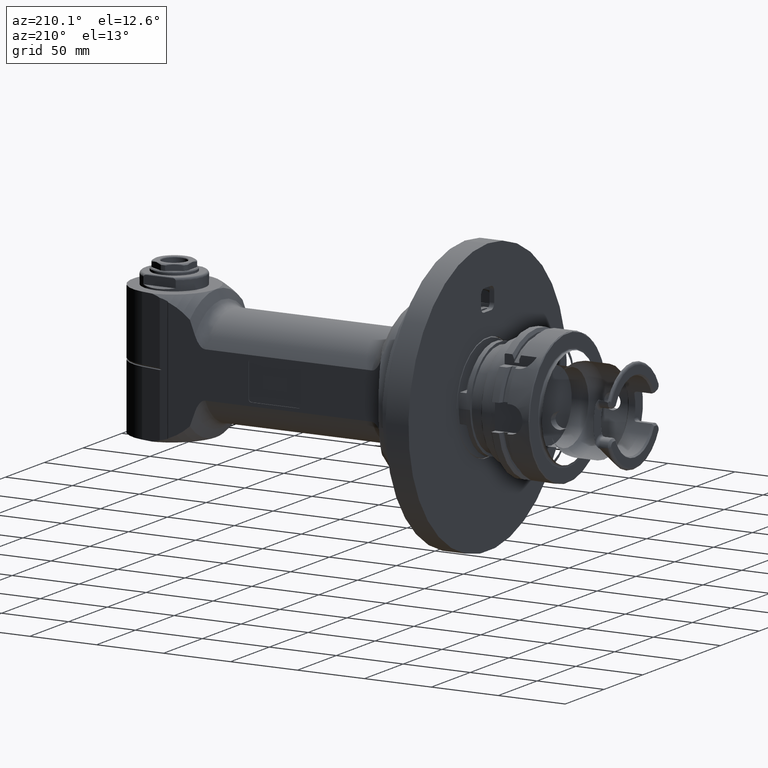
[diagram: clean part render]
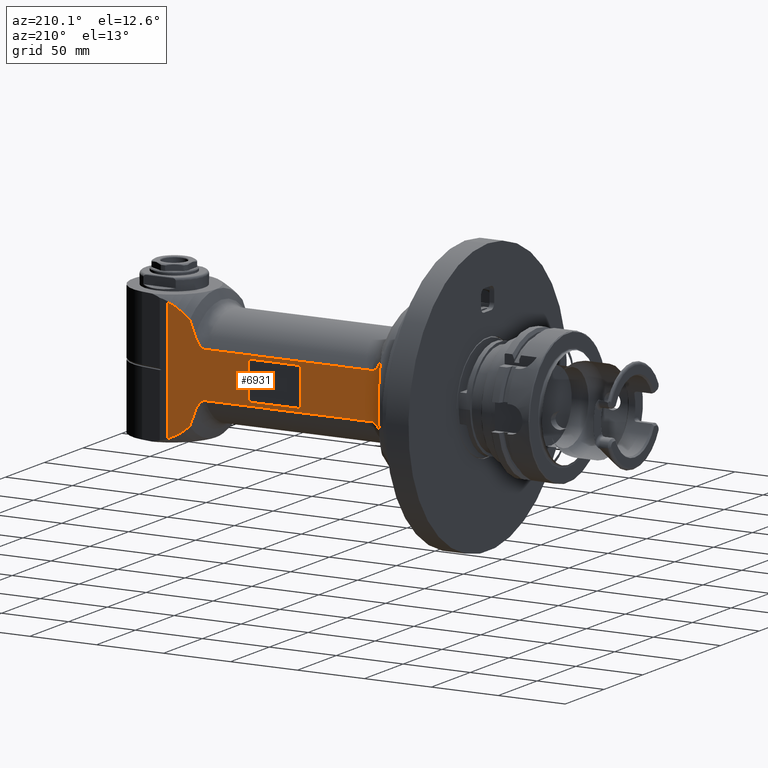
[diagram: same view with one face highlighted and labeled with its STEP entity id]
A machine part, auxiliary view. The second image highlights one B-rep face of the part: STEP entity #6931.
In plain terms, the highlighted planar face has unit normal (-0, -1, 0).
Its self-contained STEP definition (entity closure, byte-faithful):
#91=FACE_BOUND('',#2040,.T.);
#320=(
BOUNDED_CURVE()
B_SPLINE_CURVE(2,(#11979,#11980,#11981),.UNSPECIFIED.,.F.,.F.)
B_SPLINE_CURVE_WITH_KNOTS((3,3),(-19.7524056061988,-19.6950690095438),
 .UNSPECIFIED.)
CURVE()
GEOMETRIC_REPRESENTATION_ITEM()
RATIONAL_B_SPLINE_CURVE((1.0139515805238,1.01590940002572,1.01785573579014))
REPRESENTATION_ITEM('')
);
#321=(
BOUNDED_CURVE()
B_SPLINE_CURVE(2,(#12006,#12007,#12008),.UNSPECIFIED.,.F.,.F.)
B_SPLINE_CURVE_WITH_KNOTS((3,3),(-1.68251569469595,-1.56708410470162),
 .UNSPECIFIED.)
CURVE()
GEOMETRIC_REPRESENTATION_ITEM()
RATIONAL_B_SPLINE_CURVE((1.20410778307347,1.19857040560764,1.19283212244653))
REPRESENTATION_ITEM('')
);
#322=(
BOUNDED_CURVE()
B_SPLINE_CURVE(2,(#12012,#12013,#12014),.UNSPECIFIED.,.F.,.F.)
B_SPLINE_CURVE_WITH_KNOTS((3,3),(8.04558354397473,8.16101512741486),
 .UNSPECIFIED.)
CURVE()
GEOMETRIC_REPRESENTATION_ITEM()
RATIONAL_B_SPLINE_CURVE((1.20410778314471,1.19857040599458,1.19283212317199))
REPRESENTATION_ITEM('')
);
#323=(
BOUNDED_CURVE()
B_SPLINE_CURVE(2,(#12050,#12051,#12052),.UNSPECIFIED.,.F.,.F.)
B_SPLINE_CURVE_WITH_KNOTS((3,3),(2.4746077459152,3.57812751156772),
 .UNSPECIFIED.)
CURVE()
GEOMETRIC_REPRESENTATION_ITEM()
RATIONAL_B_SPLINE_CURVE((1.36109810566756,1.42592001911599,1.47674696432032))
REPRESENTATION_ITEM('')
);
#324=(
BOUNDED_CURVE()
B_SPLINE_CURVE(2,(#12054,#12055,#12056),.UNSPECIFIED.,.F.,.F.)
B_SPLINE_CURVE_WITH_KNOTS((3,3),(0.775447223401958,1.16586574722117),
 .UNSPECIFIED.)
CURVE()
GEOMETRIC_REPRESENTATION_ITEM()
RATIONAL_B_SPLINE_CURVE((1.08270925902712,1.10220493328296,1.12036603522313))
REPRESENTATION_ITEM('')
);
#325=(
BOUNDED_CURVE()
B_SPLINE_CURVE(2,(#12058,#12059,#12060),.UNSPECIFIED.,.F.,.F.)
B_SPLINE_CURVE_WITH_KNOTS((3,3),(0.393437377910756,0.696565825511962),
 .UNSPECIFIED.)
CURVE()
GEOMETRIC_REPRESENTATION_ITEM()
RATIONAL_B_SPLINE_CURVE((1.03860695966724,1.05304167866563,1.06680166779155))
REPRESENTATION_ITEM('')
);
#326=(
BOUNDED_CURVE()
B_SPLINE_CURVE(2,(#12061,#12062,#12063),.UNSPECIFIED.,.F.,.F.)
B_SPLINE_CURVE_WITH_KNOTS((3,3),(0.108232104114187,0.355921178667021),
 .UNSPECIFIED.)
CURVE()
GEOMETRIC_REPRESENTATION_ITEM()
RATIONAL_B_SPLINE_CURVE((1.00931307389174,1.01989476560906,1.03013414836408))
REPRESENTATION_ITEM('')
);
#327=(
BOUNDED_CURVE()
B_SPLINE_CURVE(2,(#12067,#12068,#12069),.UNSPECIFIED.,.F.,.F.)
B_SPLINE_CURVE_WITH_KNOTS((3,3),(19.6950727993346,19.7524094042059),
 .UNSPECIFIED.)
CURVE()
GEOMETRIC_REPRESENTATION_ITEM()
RATIONAL_B_SPLINE_CURVE((1.0178558044335,1.01590946853782,1.01395164890387))
REPRESENTATION_ITEM('')
);
#328=(
BOUNDED_CURVE()
B_SPLINE_CURVE(2,(#12071,#12072,#12073),.UNSPECIFIED.,.F.,.F.)
B_SPLINE_CURVE_WITH_KNOTS((3,3),(15.1728272754573,15.4205023496056),
 .UNSPECIFIED.)
CURVE()
GEOMETRIC_REPRESENTATION_ITEM()
RATIONAL_B_SPLINE_CURVE((1.03010464810173,1.01986555857501,1.00928416988878))
REPRESENTATION_ITEM('')
);
#329=(
BOUNDED_CURVE()
B_SPLINE_CURVE(2,(#12075,#12076,#12077),.UNSPECIFIED.,.F.,.F.)
B_SPLINE_CURVE_WITH_KNOTS((3,3),(13.0589563466926,13.3620651508839),
 .UNSPECIFIED.)
CURVE()
GEOMETRIC_REPRESENTATION_ITEM()
RATIONAL_B_SPLINE_CURVE((1.06676284694376,1.05300335854301,1.03856916482317))
REPRESENTATION_ITEM('')
);
#330=(
BOUNDED_CURVE()
B_SPLINE_CURVE(2,(#12079,#12080,#12081),.UNSPECIFIED.,.F.,.F.)
B_SPLINE_CURVE_WITH_KNOTS((3,3),(11.7904051243418,12.1807957903898),
 .UNSPECIFIED.)
CURVE()
GEOMETRIC_REPRESENTATION_ITEM()
RATIONAL_B_SPLINE_CURVE((1.12031629817442,1.10215600247491,1.08266119370688))
REPRESENTATION_ITEM('')
);
#331=(
BOUNDED_CURVE()
B_SPLINE_CURVE(2,(#12083,#12084,#12085),.UNSPECIFIED.,.F.,.F.)
B_SPLINE_CURVE_WITH_KNOTS((3,3),(11.5916444850363,12.6950325622296),
 .UNSPECIFIED.)
CURVE()
GEOMETRIC_REPRESENTATION_ITEM()
RATIONAL_B_SPLINE_CURVE((1.47658507513571,1.42576370186274,1.36094889455163))
REPRESENTATION_ITEM('')
);
#584=LINE('',#11987,#998);
#585=LINE('',#12010,#999);
#586=LINE('',#12033,#1000);
#587=LINE('',#12065,#1001);
#588=LINE('',#12102,#1002);
#589=LINE('',#12106,#1003);
#590=LINE('',#12110,#1004);
#591=LINE('',#12114,#1005);
#998=VECTOR('',#9021,124.2601241952);
#999=VECTOR('',#9022,53.76405741615);
#1000=VECTOR('',#9023,124.2601241953);
#1001=VECTOR('',#9024,10.);
#1002=VECTOR('',#9025,24.5);
#1003=VECTOR('',#9028,35.);
#1004=VECTOR('',#9031,24.5);
#1005=VECTOR('',#9034,35.);
#1300=PLANE('',#7611);
#1594=FACE_OUTER_BOUND('',#2039,.T.);
#2039=EDGE_LOOP('',(#5500,#5501,#5502,#5503,#5504,#5505,#5506,#5507,#5508,
#5509,#5510,#5511,#5512,#5513,#5514,#5515,#5516,#5517,#5518,#5519));
#2040=EDGE_LOOP('',(#5520,#5521,#5522,#5523,#5524,#5525,#5526,#5527));
#2419=B_SPLINE_CURVE_WITH_KNOTS('',3,(#11989,#11990,#11991,#11992,#11993,
#11994,#11995,#11996,#11997,#11998,#11999,#12000,#12001,#12002,#12003,#12004),
 .UNSPECIFIED.,.F.,.F.,(4,2,2,2,2,2,2,4),(3.05573251034379,3.16453283287773,
3.29192380124001,3.4787538185637,3.66558383588739,3.91846915486092,4.17135447383444,
4.18910923548411),.UNSPECIFIED.);
#2420=B_SPLINE_CURVE_WITH_KNOTS('',3,(#12016,#12017,#12018,#12019,#12020,
#12021,#12022,#12023,#12024,#12025,#12026,#12027,#12028,#12029,#12030,#12031),
 .UNSPECIFIED.,.F.,.F.,(4,2,2,2,2,2,2,4),(1.92235578597459,1.94011054685314,
2.19299586582667,2.4458811848002,2.63271120212388,2.81954121944757,2.94693218780986,
3.05573251034379),.UNSPECIFIED.);
#2421=B_SPLINE_CURVE_WITH_KNOTS('',3,(#12035,#12036,#12037,#12038,#12039,
#12040,#12041,#12042,#12043,#12044,#12045,#12046,#12047,#12048),
 .UNSPECIFIED.,.F.,.F.,(4,2,2,2,2,2,4),(-4.53537769620374,-4.35740182880211,
-4.07702596918389,-3.86658457862338,-3.65614318806286,-3.51214519276011,
-3.38938345646085),.UNSPECIFIED.);
#2422=B_SPLINE_CURVE_WITH_KNOTS('',3,(#12086,#12087,#12088,#12089,#12090,
#12091,#12092,#12093,#12094,#12095,#12096,#12097,#12098,#12099),
 .UNSPECIFIED.,.F.,.F.,(4,2,2,2,2,2,4),(-3.38938345646085,-3.26662172016158,
-3.12262372485883,-2.91218233429832,-2.7017409437378,-2.42136508411959,
-2.24338921671795),.UNSPECIFIED.);
#2627=CIRCLE('',#7612,2.);
#2628=CIRCLE('',#7613,2.);
#2629=CIRCLE('',#7614,2.);
#2630=CIRCLE('',#7615,2.);
#3161=VERTEX_POINT('',#11977);
#3162=VERTEX_POINT('',#11978);
#3163=VERTEX_POINT('',#11985);
#3164=VERTEX_POINT('',#11986);
#3165=VERTEX_POINT('',#11988);
#3166=VERTEX_POINT('',#12005);
#3167=VERTEX_POINT('',#12009);
#3168=VERTEX_POINT('',#12011);
#3169=VERTEX_POINT('',#12015);
#3170=VERTEX_POINT('',#12032);
#3171=VERTEX_POINT('',#12034);
#3172=VERTEX_POINT('',#12049);
#3173=VERTEX_POINT('',#12053);
#3174=VERTEX_POINT('',#12057);
#3175=VERTEX_POINT('',#12064);
#3176=VERTEX_POINT('',#12066);
#3177=VERTEX_POINT('',#12070);
#3178=VERTEX_POINT('',#12074);
#3179=VERTEX_POINT('',#12078);
#3180=VERTEX_POINT('',#12082);
#3181=VERTEX_POINT('',#12100);
#3182=VERTEX_POINT('',#12101);
#3183=VERTEX_POINT('',#12103);
#3184=VERTEX_POINT('',#12105);
#3185=VERTEX_POINT('',#12107);
#3186=VERTEX_POINT('',#12109);
#3187=VERTEX_POINT('',#12111);
#3188=VERTEX_POINT('',#12113);
#4009=EDGE_CURVE('',#3161,#3162,#320,.T.);
#4012=EDGE_CURVE('',#3163,#3164,#584,.T.);
#4013=EDGE_CURVE('',#3163,#3165,#2419,.T.);
#4014=EDGE_CURVE('',#3165,#3166,#321,.T.);
#4015=EDGE_CURVE('',#3167,#3166,#585,.T.);
#4016=EDGE_CURVE('',#3168,#3167,#322,.T.);
#4017=EDGE_CURVE('',#3168,#3169,#2420,.T.);
#4018=EDGE_CURVE('',#3170,#3169,#586,.T.);
#4019=EDGE_CURVE('',#3171,#3170,#2421,.T.);
#4020=EDGE_CURVE('',#3172,#3171,#323,.T.);
#4021=EDGE_CURVE('',#3173,#3172,#324,.T.);
#4022=EDGE_CURVE('',#3174,#3173,#325,.T.);
#4023=EDGE_CURVE('',#3162,#3174,#326,.T.);
#4024=EDGE_CURVE('',#3161,#3175,#587,.T.);
#4025=EDGE_CURVE('',#3176,#3175,#327,.T.);
#4026=EDGE_CURVE('',#3177,#3176,#328,.T.);
#4027=EDGE_CURVE('',#3178,#3177,#329,.T.);
#4028=EDGE_CURVE('',#3179,#3178,#330,.T.);
#4029=EDGE_CURVE('',#3180,#3179,#331,.T.);
#4030=EDGE_CURVE('',#3164,#3180,#2422,.T.);
#4031=EDGE_CURVE('',#3181,#3182,#588,.T.);
#4032=EDGE_CURVE('',#3182,#3183,#2627,.T.);
#4033=EDGE_CURVE('',#3183,#3184,#589,.T.);
#4034=EDGE_CURVE('',#3184,#3185,#2628,.T.);
#4035=EDGE_CURVE('',#3185,#3186,#590,.T.);
#4036=EDGE_CURVE('',#3186,#3187,#2629,.T.);
#4037=EDGE_CURVE('',#3187,#3188,#591,.T.);
#4038=EDGE_CURVE('',#3188,#3181,#2630,.T.);
#5500=ORIENTED_EDGE('',*,*,#4012,.F.);
#5501=ORIENTED_EDGE('',*,*,#4013,.T.);
#5502=ORIENTED_EDGE('',*,*,#4014,.T.);
#5503=ORIENTED_EDGE('',*,*,#4015,.F.);
#5504=ORIENTED_EDGE('',*,*,#4016,.F.);
#5505=ORIENTED_EDGE('',*,*,#4017,.T.);
#5506=ORIENTED_EDGE('',*,*,#4018,.F.);
#5507=ORIENTED_EDGE('',*,*,#4019,.F.);
#5508=ORIENTED_EDGE('',*,*,#4020,.F.);
#5509=ORIENTED_EDGE('',*,*,#4021,.F.);
#5510=ORIENTED_EDGE('',*,*,#4022,.F.);
#5511=ORIENTED_EDGE('',*,*,#4023,.F.);
#5512=ORIENTED_EDGE('',*,*,#4009,.F.);
#5513=ORIENTED_EDGE('',*,*,#4024,.T.);
#5514=ORIENTED_EDGE('',*,*,#4025,.F.);
#5515=ORIENTED_EDGE('',*,*,#4026,.F.);
#5516=ORIENTED_EDGE('',*,*,#4027,.F.);
#5517=ORIENTED_EDGE('',*,*,#4028,.F.);
#5518=ORIENTED_EDGE('',*,*,#4029,.F.);
#5519=ORIENTED_EDGE('',*,*,#4030,.F.);
#5520=ORIENTED_EDGE('',*,*,#4031,.T.);
#5521=ORIENTED_EDGE('',*,*,#4032,.T.);
#5522=ORIENTED_EDGE('',*,*,#4033,.T.);
#5523=ORIENTED_EDGE('',*,*,#4034,.T.);
#5524=ORIENTED_EDGE('',*,*,#4035,.T.);
#5525=ORIENTED_EDGE('',*,*,#4036,.T.);
#5526=ORIENTED_EDGE('',*,*,#4037,.T.);
#5527=ORIENTED_EDGE('',*,*,#4038,.T.);
#6931=ADVANCED_FACE('',(#1594,#91),#1300,.F.);
#7611=AXIS2_PLACEMENT_3D('',#11984,#9019,#9020);
#7612=AXIS2_PLACEMENT_3D('',#12104,#9026,#9027);
#7613=AXIS2_PLACEMENT_3D('',#12108,#9029,#9030);
#7614=AXIS2_PLACEMENT_3D('',#12112,#9032,#9033);
#7615=AXIS2_PLACEMENT_3D('',#12115,#9035,#9036);
#9019=DIRECTION('center_axis',(0.,0.,-1.));
#9020=DIRECTION('ref_axis',(0.,-1.,0.));
#9021=DIRECTION('',(1.,0.,0.));
#9022=DIRECTION('',(-4.074430393041E-10,1.,-5.958936686029E-12));
#9023=DIRECTION('',(-1.,1.184808528101E-13,5.906888076875E-14));
#9024=DIRECTION('',(0.,1.,0.));
#9025=DIRECTION('',(0.,1.,0.));
#9026=DIRECTION('center_axis',(0.,0.,-1.));
#9027=DIRECTION('ref_axis',(-1.,0.,0.));
#9028=DIRECTION('',(1.,0.,0.));
#9029=DIRECTION('center_axis',(0.,0.,-1.));
#9030=DIRECTION('ref_axis',(0.,1.,0.));
#9031=DIRECTION('',(0.,-1.,0.));
#9032=DIRECTION('center_axis',(0.,0.,-1.));
#9033=DIRECTION('ref_axis',(1.,0.,0.));
#9034=DIRECTION('',(-1.,0.,0.));
#9035=DIRECTION('center_axis',(0.,0.,-1.));
#9036=DIRECTION('ref_axis',(0.,-1.,0.));
#11977=CARTESIAN_POINT('',(190.490001868526,-44.980538571165,33.9999991535254));
#11978=CARTESIAN_POINT('',(189.1961524227,-44.54518184073,34.));
#11979=CARTESIAN_POINT('Ctrl Pts',(190.490002424342,-44.9805369163829,34.));
#11980=CARTESIAN_POINT('Ctrl Pts',(189.839931488597,-44.7621881120739,34.));
#11981=CARTESIAN_POINT('Ctrl Pts',(189.196152422644,-44.5451818407041,34.));
#11984=CARTESIAN_POINT('Origin',(33.625278936,39.06491673104,34.));
#11985=CARTESIAN_POINT('',(38.3890228437,16.97056274848,34.));
#11986=CARTESIAN_POINT('',(162.6491470389,16.97056274848,34.));
#11987=CARTESIAN_POINT('',(38.3890228437,16.97056274848,34.));
#11988=CARTESIAN_POINT('',(31.1385608088249,25.6979316313597,34.0000002637449));
#11989=CARTESIAN_POINT('Ctrl Pts',(38.3890228437,16.9705627484771,34.));
#11990=CARTESIAN_POINT('Ctrl Pts',(38.0263551019202,16.9705627484771,34.));
#11991=CARTESIAN_POINT('Ctrl Pts',(37.5969919386582,17.041608064786,34.));
#11992=CARTESIAN_POINT('Ctrl Pts',(36.8469152475922,17.2808423077824,34.));
#11993=CARTESIAN_POINT('Ctrl Pts',(36.3927317220103,17.5118675579488,34.));
#11994=CARTESIAN_POINT('Ctrl Pts',(35.5202217011755,18.0913327478181,34.));
#11995=CARTESIAN_POINT('Ctrl Pts',(35.0171104654881,18.5465996865153,34.));
#11996=CARTESIAN_POINT('Ctrl Pts',(34.1113046644895,19.555304351645,34.));
#11997=CARTESIAN_POINT('Ctrl Pts',(33.7075269965354,20.1077689382488,34.));
#11998=CARTESIAN_POINT('Ctrl Pts',(32.9139519666778,21.3400705673323,34.));
#11999=CARTESIAN_POINT('Ctrl Pts',(32.4781160793825,22.1555959983675,34.));
#12000=CARTESIAN_POINT('Ctrl Pts',(31.7326935245449,23.8439416682404,34.));
#12001=CARTESIAN_POINT('Ctrl Pts',(31.4228209341212,24.7166356546219,34.));
#12002=CARTESIAN_POINT('Ctrl Pts',(31.1711585699788,25.582956086374,34.));
#12003=CARTESIAN_POINT('Ctrl Pts',(31.1547835923171,25.6402343026027,34.));
#12004=CARTESIAN_POINT('Ctrl Pts',(31.1385608997438,25.6979316569233,34.));
#12005=CARTESIAN_POINT('',(30.8008289374795,26.8820294722231,34.0000000485766));
#12006=CARTESIAN_POINT('Ctrl Pts',(31.1385608997727,25.6979316569327,34.));
#12007=CARTESIAN_POINT('Ctrl Pts',(30.9734978338615,26.2849923281079,34.));
#12008=CARTESIAN_POINT('Ctrl Pts',(30.8008290654971,26.882029509247,34.));
#12009=CARTESIAN_POINT('',(30.8008289594048,-26.8820293963772,34.0000000486834));
#12010=CARTESIAN_POINT('',(30.8008286892,-26.88202867012,34.00000014605));
#12011=CARTESIAN_POINT('',(31.1385608103931,-25.6979316236888,34.0000002653272));
#12012=CARTESIAN_POINT('Ctrl Pts',(31.1385609018865,-25.6979316494151,34.));
#12013=CARTESIAN_POINT('Ctrl Pts',(30.973497845449,-26.2849922870051,34.));
#12014=CARTESIAN_POINT('Ctrl Pts',(30.8008290874317,-26.8820294334037,34.));
#12015=CARTESIAN_POINT('',(38.3890228437,-16.97056274848,34.));
#12016=CARTESIAN_POINT('Ctrl Pts',(31.1385609018575,-25.6979316494057,34.));
#12017=CARTESIAN_POINT('Ctrl Pts',(31.1547835937394,-25.6402342976273,34.));
#12018=CARTESIAN_POINT('Ctrl Pts',(31.1711585706959,-25.5829560839057,34.));
#12019=CARTESIAN_POINT('Ctrl Pts',(31.4228209341212,-24.7166356546219,34.));
#12020=CARTESIAN_POINT('Ctrl Pts',(31.7326935245449,-23.8439416682403,34.));
#12021=CARTESIAN_POINT('Ctrl Pts',(32.4781160793825,-22.1555959983675,34.));
#12022=CARTESIAN_POINT('Ctrl Pts',(32.9139519666778,-21.3400705673323,34.));
#12023=CARTESIAN_POINT('Ctrl Pts',(33.7075269965354,-20.1077689382488,34.));
#12024=CARTESIAN_POINT('Ctrl Pts',(34.1113046644895,-19.555304351645,34.));
#12025=CARTESIAN_POINT('Ctrl Pts',(35.0171104654881,-18.5465996865153,34.));
#12026=CARTESIAN_POINT('Ctrl Pts',(35.5202217011755,-18.0913327478181,34.));
#12027=CARTESIAN_POINT('Ctrl Pts',(36.3927317220103,-17.5118675579488,34.));
#12028=CARTESIAN_POINT('Ctrl Pts',(36.8469152475922,-17.2808423077824,34.));
#12029=CARTESIAN_POINT('Ctrl Pts',(37.5969919386582,-17.041608064786,34.));
#12030=CARTESIAN_POINT('Ctrl Pts',(38.0263551019202,-16.9705627484771,34.));
#12031=CARTESIAN_POINT('Ctrl Pts',(38.3890228437,-16.9705627484771,34.));
#12032=CARTESIAN_POINT('',(162.6491470389,-16.97056274848,34.));
#12033=CARTESIAN_POINT('',(162.6491470389,-16.97056274848,34.));
#12034=CARTESIAN_POINT('',(170.443375673,-25.5,34.));
#12035=CARTESIAN_POINT('Ctrl Pts',(170.443375672964,-25.5000000000124,34.));
#12036=CARTESIAN_POINT('Ctrl Pts',(170.238066143501,-24.9073224394958,34.));
#12037=CARTESIAN_POINT('Ctrl Pts',(169.999966857014,-24.3019762332053,34.));
#12038=CARTESIAN_POINT('Ctrl Pts',(169.316124421984,-22.775617262053,34.));
#12039=CARTESIAN_POINT('Ctrl Pts',(168.827756415105,-21.8740827520354,34.));
#12040=CARTESIAN_POINT('Ctrl Pts',(167.936205079956,-20.5022881748303,34.));
#12041=CARTESIAN_POINT('Ctrl Pts',(167.478894813742,-19.8818483557007,34.));
#12042=CARTESIAN_POINT('Ctrl Pts',(166.455028943999,-18.7484497607113,34.));
#12043=CARTESIAN_POINT('Ctrl Pts',(165.887313072228,-18.236539663176,34.));
#12044=CARTESIAN_POINT('Ctrl Pts',(164.903018327277,-17.5830700752859,34.));
#12045=CARTESIAN_POINT('Ctrl Pts',(164.389780761955,-17.3216241650835,34.));
#12046=CARTESIAN_POINT('Ctrl Pts',(163.542770080769,-17.0509805712282,34.));
#12047=CARTESIAN_POINT('Ctrl Pts',(163.058352826564,-16.9705627484771,34.));
#12048=CARTESIAN_POINT('Ctrl Pts',(162.6491470389,-16.9705627484771,34.));
#12049=CARTESIAN_POINT('',(174.1961524227,-35.28455752875,34.));
#12050=CARTESIAN_POINT('Ctrl Pts',(174.196152422755,-35.284557528969,34.));
#12051=CARTESIAN_POINT('Ctrl Pts',(172.01771973354,-30.0447398359247,34.));
#12052=CARTESIAN_POINT('Ctrl Pts',(170.443375672978,-25.5000000001271,34.));
#12053=CARTESIAN_POINT('',(179.196152442688,-39.194833418388,33.999999994418));
#12054=CARTESIAN_POINT('Ctrl Pts',(179.1961524443,-39.1948334162803,34.));
#12055=CARTESIAN_POINT('Ctrl Pts',(176.564898812371,-37.1837515845507,34.));
#12056=CARTESIAN_POINT('Ctrl Pts',(174.1961524227,-35.2845575287494,34.));
#12057=CARTESIAN_POINT('',(184.196152426142,-42.2329602483583,33.9999999992183));
#12058=CARTESIAN_POINT('Ctrl Pts',(184.196152426316,-42.2329602480683,34.));
#12059=CARTESIAN_POINT('Ctrl Pts',(181.602875721469,-40.6805171302751,34.));
#12060=CARTESIAN_POINT('Ctrl Pts',(179.19615244549,-39.1948334138507,34.));
#12061=CARTESIAN_POINT('Ctrl Pts',(189.196152422701,-44.5451818407277,34.));
#12062=CARTESIAN_POINT('Ctrl Pts',(186.629539406154,-43.3699887142369,34.));
#12063=CARTESIAN_POINT('Ctrl Pts',(184.196152426468,-42.2329602476605,34.));
#12064=CARTESIAN_POINT('',(190.490001868526,44.980538571165,33.9999991535254));
#12065=CARTESIAN_POINT('',(190.4899997692,19.5324583655199,34.));
#12066=CARTESIAN_POINT('',(189.1961524227,44.54518184073,34.));
#12067=CARTESIAN_POINT('Ctrl Pts',(189.196152422644,44.5451818407041,34.));
#12068=CARTESIAN_POINT('Ctrl Pts',(189.839931488597,44.7621881120739,34.));
#12069=CARTESIAN_POINT('Ctrl Pts',(190.490002424342,44.9805369163829,34.));
#12070=CARTESIAN_POINT('',(184.196152426142,42.2329602483584,33.9999999992183));
#12071=CARTESIAN_POINT('Ctrl Pts',(184.196152426468,42.2329602476606,34.));
#12072=CARTESIAN_POINT('Ctrl Pts',(186.629539406154,43.3699887142369,34.));
#12073=CARTESIAN_POINT('Ctrl Pts',(189.196152422701,44.5451818407277,34.));
#12074=CARTESIAN_POINT('',(179.196152442688,39.1948334183886,33.9999999944178));
#12075=CARTESIAN_POINT('Ctrl Pts',(179.196152445491,39.1948334138512,34.));
#12076=CARTESIAN_POINT('Ctrl Pts',(181.602875721469,40.6805171302753,34.));
#12077=CARTESIAN_POINT('Ctrl Pts',(184.196152426316,42.2329602480683,34.));
#12078=CARTESIAN_POINT('',(174.196152423149,35.2845575291683,34.0000000000008));
#12079=CARTESIAN_POINT('Ctrl Pts',(174.196152423991,35.2845575297845,34.));
#12080=CARTESIAN_POINT('Ctrl Pts',(176.564898813087,37.1837515850982,34.));
#12081=CARTESIAN_POINT('Ctrl Pts',(179.196152444301,39.1948334162809,34.));
#12082=CARTESIAN_POINT('',(170.443375673,25.5,34.));
#12083=CARTESIAN_POINT('Ctrl Pts',(170.443375672978,25.5000000001269,34.));
#12084=CARTESIAN_POINT('Ctrl Pts',(172.017719733539,30.0447398359241,34.));
#12085=CARTESIAN_POINT('Ctrl Pts',(174.196152422755,35.284557528968,34.));
#12086=CARTESIAN_POINT('Ctrl Pts',(162.6491470389,16.9705627484771,34.));
#12087=CARTESIAN_POINT('Ctrl Pts',(163.058352826564,16.9705627484771,34.));
#12088=CARTESIAN_POINT('Ctrl Pts',(163.542770080769,17.0509805712282,34.));
#12089=CARTESIAN_POINT('Ctrl Pts',(164.389780761955,17.3216241650835,34.));
#12090=CARTESIAN_POINT('Ctrl Pts',(164.903018327277,17.5830700752859,34.));
#12091=CARTESIAN_POINT('Ctrl Pts',(165.887313072228,18.236539663176,34.));
#12092=CARTESIAN_POINT('Ctrl Pts',(166.455028943999,18.7484497607113,34.));
#12093=CARTESIAN_POINT('Ctrl Pts',(167.478894813742,19.8818483557008,34.));
#12094=CARTESIAN_POINT('Ctrl Pts',(167.936205079956,20.5022881748303,34.));
#12095=CARTESIAN_POINT('Ctrl Pts',(168.827756415105,21.8740827520354,34.));
#12096=CARTESIAN_POINT('Ctrl Pts',(169.316124421984,22.775617262053,34.));
#12097=CARTESIAN_POINT('Ctrl Pts',(169.999966857014,24.3019762332053,34.));
#12098=CARTESIAN_POINT('Ctrl Pts',(170.238066143501,24.9073224394957,34.));
#12099=CARTESIAN_POINT('Ctrl Pts',(170.443375672964,25.5000000000124,34.));
#12100=CARTESIAN_POINT('',(91.2499997692,-12.25,34.));
#12101=CARTESIAN_POINT('',(91.2499997692,12.25,34.));
#12102=CARTESIAN_POINT('',(91.2499997692,-12.25,34.));
#12103=CARTESIAN_POINT('',(93.2499997692,14.25,34.));
#12104=CARTESIAN_POINT('Origin',(93.2499997692,12.25,34.));
#12105=CARTESIAN_POINT('',(128.2499997692,14.25,34.));
#12106=CARTESIAN_POINT('',(93.2499997692,14.25,34.));
#12107=CARTESIAN_POINT('',(130.2499997692,12.25,34.));
#12108=CARTESIAN_POINT('Origin',(128.2499997692,12.25,34.));
#12109=CARTESIAN_POINT('',(130.2499997692,-12.25,34.));
#12110=CARTESIAN_POINT('',(130.2499997692,12.25,34.));
#12111=CARTESIAN_POINT('',(128.2499997692,-14.25,34.));
#12112=CARTESIAN_POINT('Origin',(128.2499997692,-12.25,34.));
#12113=CARTESIAN_POINT('',(93.2499997692,-14.25,34.));
#12114=CARTESIAN_POINT('',(128.2499997692,-14.25,34.));
#12115=CARTESIAN_POINT('Origin',(93.2499997692,-12.25,34.));